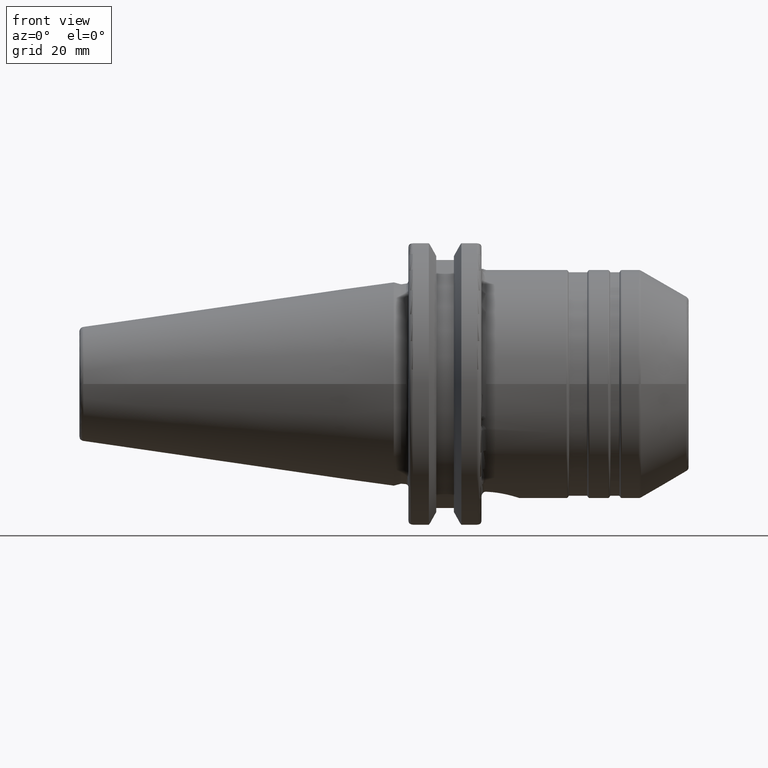
[diagram: clean part render]
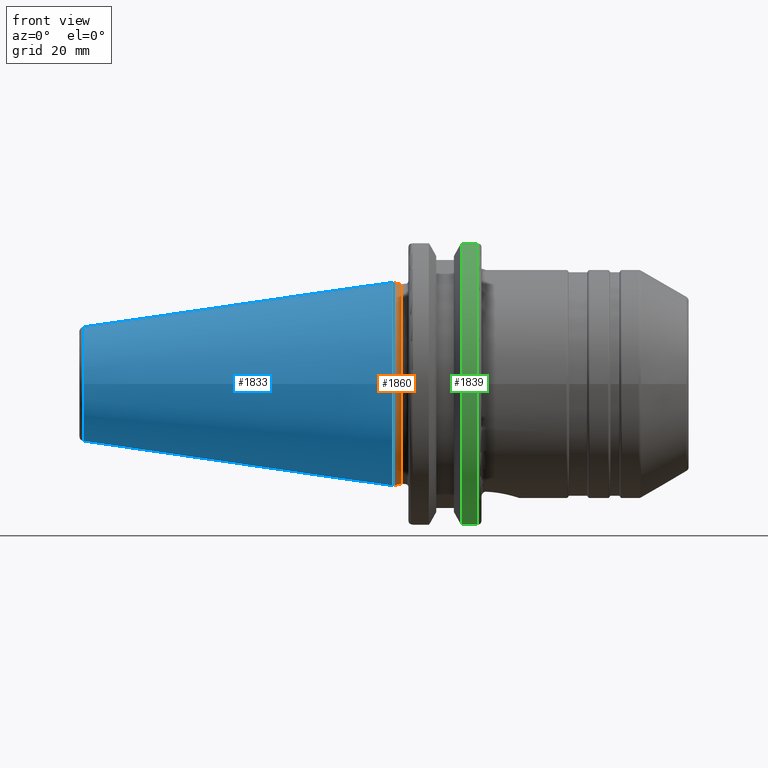
[diagram: same view with three faces highlighted in distinct colors, each labeled with its STEP entity id]
A machine part, front view with three faces highlighted in distinct colors.
Their STEP definitions:

[orange] entity #1860 — the highlighted conical surface has half-angle 15 deg.
#159=CONICAL_SURFACE('',#2129,22.0125,0.261799387799148);
#247=LINE('',#3793,#335);
#335=VECTOR('',#2710,22.0125);
#469=FACE_OUTER_BOUND('',#587,.T.);
#587=EDGE_LOOP('',(#1733,#1734,#1735,#1736));
#681=CIRCLE('',#2061,21.8);
#692=CIRCLE('',#2087,22.225);
#834=VERTEX_POINT('',#3465);
#877=VERTEX_POINT('',#3699);
#1076=EDGE_CURVE('',#834,#834,#681,.T.);
#1135=EDGE_CURVE('',#877,#877,#692,.T.);
#1174=EDGE_CURVE('',#834,#877,#247,.T.);
#1733=ORIENTED_EDGE('',*,*,#1076,.F.);
#1734=ORIENTED_EDGE('',*,*,#1174,.T.);
#1735=ORIENTED_EDGE('',*,*,#1135,.T.);
#1736=ORIENTED_EDGE('',*,*,#1174,.F.);
#1860=ADVANCED_FACE('',(#469),#159,.T.);
#2061=AXIS2_PLACEMENT_3D('',#3467,#2533,#2534);
#2087=AXIS2_PLACEMENT_3D('',#3700,#2607,#2608);
#2129=AXIS2_PLACEMENT_3D('',#3792,#2708,#2709);
#2533=DIRECTION('center_axis',(1.,0.,0.));
#2534=DIRECTION('ref_axis',(0.,0.,-1.));
#2607=DIRECTION('center_axis',(1.,0.,0.));
#2608=DIRECTION('ref_axis',(0.,0.,-1.));
#2708=DIRECTION('center_axis',(-1.,0.,0.));
#2709=DIRECTION('ref_axis',(0.,1.,0.));
#2710=DIRECTION('',(-0.965925826289069,-0.258819045102519,-3.16961915143175E-17));
#3465=CARTESIAN_POINT('',(1.58612159321676,-21.8,-2.66973002214123E-15));
#3467=CARTESIAN_POINT('Origin',(1.58612159321676,0.,0.));
#3699=CARTESIAN_POINT('',(0.,-22.225,-2.72177751110499E-15));
#3700=CARTESIAN_POINT('Origin',(0.,0.,0.));
#3792=CARTESIAN_POINT('Origin',(0.793060796608378,0.,0.));
#3793=CARTESIAN_POINT('',(0.793060796608378,-22.0125,-2.69575376662311E-15));

[blue] entity #1833 — the highlighted conical surface has half-angle 8.297 deg.
#152=CONICAL_SURFACE('',#2086,17.2484375,0.144812498238939);
#230=LINE('',#3701,#318);
#318=VECTOR('',#2609,17.2484375);
#442=FACE_OUTER_BOUND('',#559,.T.);
#559=EDGE_LOOP('',(#1606,#1607,#1608,#1609,#1610));
#687=CIRCLE('',#2080,12.3966635780937);
#688=CIRCLE('',#2081,12.3966635780937);
#692=CIRCLE('',#2087,22.225);
#873=VERTEX_POINT('',#3688);
#874=VERTEX_POINT('',#3689);
#877=VERTEX_POINT('',#3699);
#1130=EDGE_CURVE('',#873,#874,#687,.T.);
#1131=EDGE_CURVE('',#874,#873,#688,.T.);
#1135=EDGE_CURVE('',#877,#877,#692,.T.);
#1136=EDGE_CURVE('',#877,#874,#230,.T.);
#1606=ORIENTED_EDGE('',*,*,#1135,.F.);
#1607=ORIENTED_EDGE('',*,*,#1136,.T.);
#1608=ORIENTED_EDGE('',*,*,#1130,.F.);
#1609=ORIENTED_EDGE('',*,*,#1131,.F.);
#1610=ORIENTED_EDGE('',*,*,#1136,.F.);
#1833=ADVANCED_FACE('',(#442),#152,.T.);
#2080=AXIS2_PLACEMENT_3D('',#3690,#2593,#2594);
#2081=AXIS2_PLACEMENT_3D('',#3691,#2595,#2596);
#2086=AXIS2_PLACEMENT_3D('',#3698,#2605,#2606);
#2087=AXIS2_PLACEMENT_3D('',#3700,#2607,#2608);
#2593=DIRECTION('center_axis',(-1.,0.,0.));
#2594=DIRECTION('ref_axis',(0.,-1.,3.06161699786838E-17));
#2595=DIRECTION('center_axis',(-1.,0.,0.));
#2596=DIRECTION('ref_axis',(0.,-1.,3.06161699786838E-17));
#2605=DIRECTION('center_axis',(1.,0.,0.));
#2606=DIRECTION('ref_axis',(0.,1.,0.));
#2607=DIRECTION('center_axis',(1.,0.,0.));
#2608=DIRECTION('ref_axis',(0.,0.,-1.));
#2609=DIRECTION('',(-0.989532981063282,0.144306893071729,1.76724974695192E-17));
#3688=CARTESIAN_POINT('',(-67.3943068930717,-1.5181534371019E-15,12.3966635780937));
#3689=CARTESIAN_POINT('',(-67.3943068930718,-12.3966635780937,-1.5181534371019E-15));
#3690=CARTESIAN_POINT('Origin',(-67.3943068930717,0.,-1.89769179637738E-15));
#3691=CARTESIAN_POINT('Origin',(-67.3943068930717,0.,-1.89769179637738E-15));
#3698=CARTESIAN_POINT('Origin',(-34.125,0.,0.));
#3699=CARTESIAN_POINT('',(0.,-22.225,-2.72177751110499E-15));
#3700=CARTESIAN_POINT('Origin',(0.,0.,0.));
#3701=CARTESIAN_POINT('',(-34.125,-17.2484375,-2.11232437746682E-15));

[green] entity #1839 — the highlighted cylindrical surface (partial cylindrical patch) has radius 31.75 mm, axis along (1, 0, 0).
#239=LINE('',#3728,#327);
#240=LINE('',#3734,#328);
#327=VECTOR('',#2628,10.);
#328=VECTOR('',#2631,10.);
#360=CYLINDRICAL_SURFACE('',#2093,31.75);
#448=FACE_OUTER_BOUND('',#565,.T.);
#565=EDGE_LOOP('',(#1639,#1640,#1641,#1642));
#683=CIRCLE('',#2067,31.75);
#693=CIRCLE('',#2094,31.75);
#849=VERTEX_POINT('',#3549);
#850=VERTEX_POINT('',#3558);
#884=VERTEX_POINT('',#3727);
#885=VERTEX_POINT('',#3733);
#1096=EDGE_CURVE('',#849,#850,#683,.T.);
#1147=EDGE_CURVE('',#850,#884,#239,.T.);
#1149=EDGE_CURVE('',#885,#849,#240,.T.);
#1150=EDGE_CURVE('',#885,#884,#693,.T.);
#1639=ORIENTED_EDGE('',*,*,#1096,.F.);
#1640=ORIENTED_EDGE('',*,*,#1149,.F.);
#1641=ORIENTED_EDGE('',*,*,#1150,.T.);
#1642=ORIENTED_EDGE('',*,*,#1147,.F.);
#1839=ADVANCED_FACE('',(#448),#360,.T.);
#2067=AXIS2_PLACEMENT_3D('',#3559,#2552,#2553);
#2093=AXIS2_PLACEMENT_3D('',#3732,#2629,#2630);
#2094=AXIS2_PLACEMENT_3D('',#3735,#2632,#2633);
#2552=DIRECTION('center_axis',(1.,0.,0.));
#2553=DIRECTION('ref_axis',(0.,-1.,1.60812264967664E-16));
#2628=DIRECTION('',(-1.,0.,0.));
#2629=DIRECTION('center_axis',(1.,0.,0.));
#2630=DIRECTION('ref_axis',(0.,-1.,1.22464679914735E-16));
#2631=DIRECTION('',(1.,0.,0.));
#2632=DIRECTION('center_axis',(1.,0.,0.));
#2633=DIRECTION('ref_axis',(0.,0.,-1.));
#3549=CARTESIAN_POINT('',(18.05,-8.67204822802685,30.5427254764662));
#3558=CARTESIAN_POINT('',(18.05,-8.67204822802686,-30.5427254764662));
#3559=CARTESIAN_POINT('Origin',(18.05,0.,0.));
#3727=CARTESIAN_POINT('',(14.6602667690756,-8.67204822802686,-30.5427254764662));
#3728=CARTESIAN_POINT('',(16.8551333845378,-8.67204822802686,-30.5427254764662));
#3732=CARTESIAN_POINT('Origin',(16.8551333845378,0.,0.));
#3733=CARTESIAN_POINT('',(14.6602667690756,-8.67204822802685,30.5427254764662));
#3734=CARTESIAN_POINT('',(16.8551333845378,-8.67204822802685,30.5427254764662));
#3735=CARTESIAN_POINT('Origin',(14.6602667690756,0.,0.));